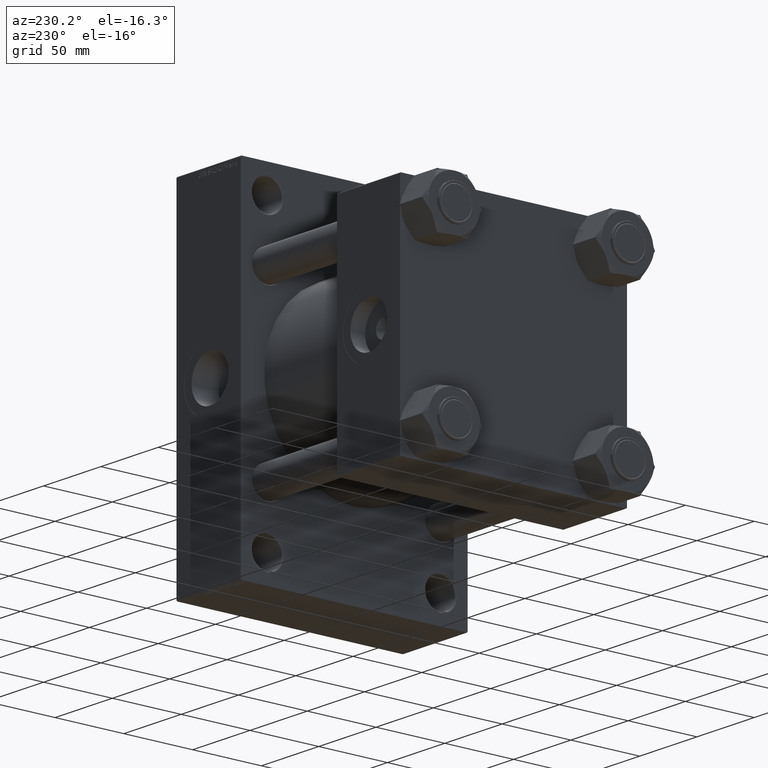
[diagram: clean part render]
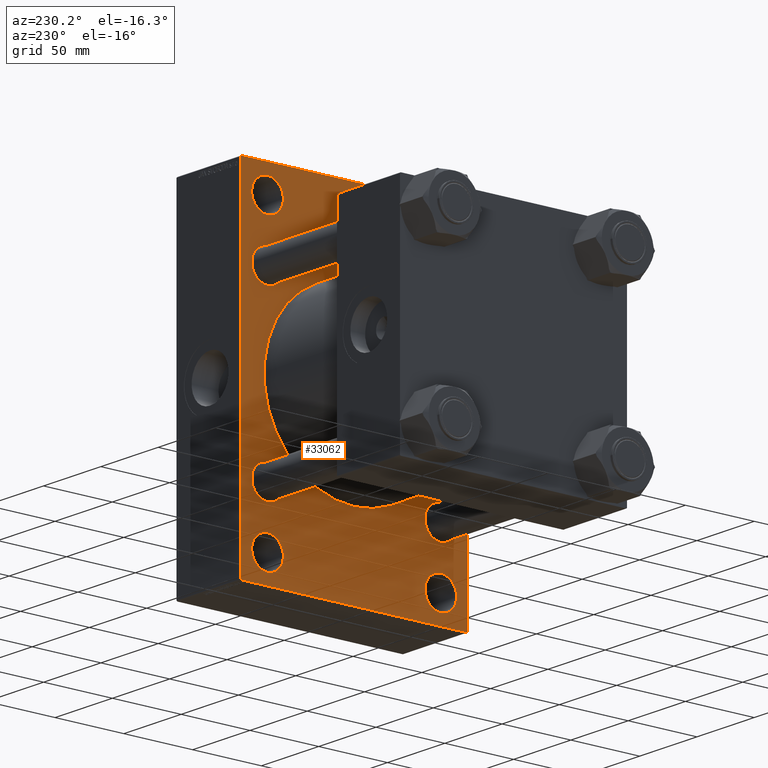
[diagram: same view with one face highlighted and labeled with its STEP entity id]
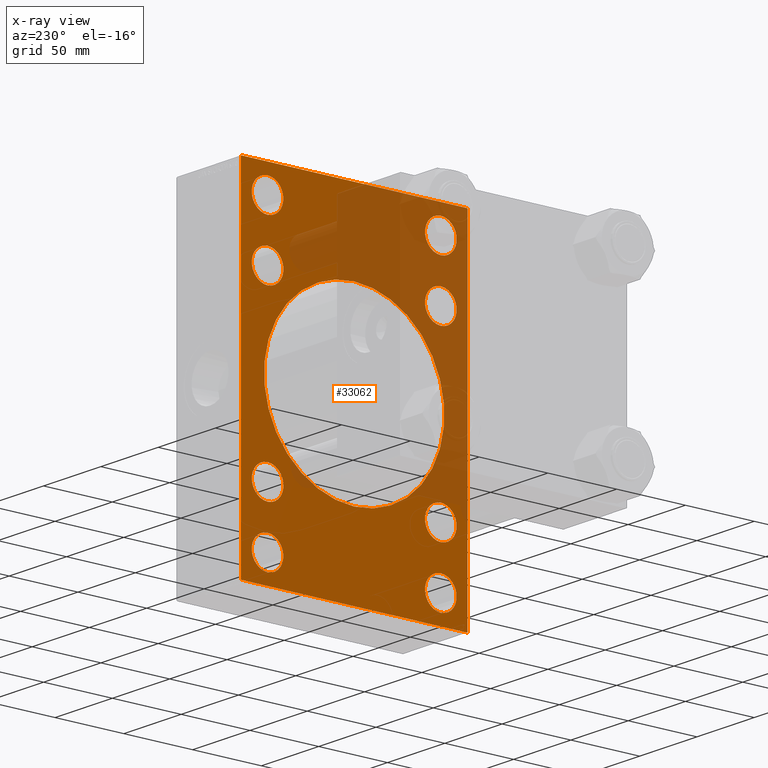
[diagram: x-ray of the same camera — body ghosted, the highlighted face saturated]
A machine part, auxiliary view. The second image highlights one B-rep face of the part: STEP entity #33062.
The next image is the same camera in x-ray: the body ghosted, the highlighted face saturated — about 37% of this face is hidden behind the body in this view.
In plain terms, the highlighted planar face has unit normal (-1, 0, 0).
Its self-contained STEP definition (entity closure, byte-faithful):
#585 = ORIENTED_EDGE ( 'NONE', *, *, #13997, .T. ) ;
#625 = CARTESIAN_POINT ( 'NONE',  ( 139.0000000000000000, -62.94999999999998153, 62.95000000000001705 ) ) ;
#730 = ORIENTED_EDGE ( 'NONE', *, *, #24531, .T. ) ;
#773 = VECTOR ( 'NONE', #12327, 1000.000000000000000 ) ;
#813 = CARTESIAN_POINT ( 'NONE',  ( 139.0000000000000000, 62.95000000000000284, 51.45000000000000995 ) ) ;
#835 = EDGE_CURVE ( 'NONE', #13593, #44879, #25471, .T. ) ;
#1060 = CIRCLE ( 'NONE', #28741, 11.50000000000001066 ) ;
#1460 = CARTESIAN_POINT ( 'NONE',  ( 139.0000000000000000, 62.95000000000000284, 62.95000000000000284 ) ) ;
#1718 = FACE_BOUND ( 'NONE', #44923, .T. ) ;
#1728 = ORIENTED_EDGE ( 'NONE', *, *, #33346, .T. ) ;
#2389 = EDGE_CURVE ( 'NONE', #39641, #11834, #14016, .T. ) ;
#2421 = FACE_OUTER_BOUND ( 'NONE', #25835, .T. ) ;
#2529 = DIRECTION ( 'NONE',  ( 0.000000000000000000, 0.7071067811865081598, -0.7071067811865868746 ) ) ;
#2557 = DIRECTION ( 'NONE',  ( 0.000000000000000000, 0.000000000000000000, -1.000000000000000000 ) ) ;
#2613 = DIRECTION ( 'NONE',  ( 0.000000000000000000, 0.000000000000000000, 1.000000000000000000 ) ) ;
#2649 = ORIENTED_EDGE ( 'NONE', *, *, #835, .T. ) ;
#2821 = ORIENTED_EDGE ( 'NONE', *, *, #35153, .T. ) ;
#3031 = CARTESIAN_POINT ( 'NONE',  ( 139.0000000000000000, -82.50000000000002842, 123.4999999999999716 ) ) ;
#3664 = CARTESIAN_POINT ( 'NONE',  ( 139.0000000000000000, -62.94999999999998153, 51.45000000000000995 ) ) ;
#3982 = EDGE_CURVE ( 'NONE', #11834, #20596, #9010, .T. ) ;
#4159 = VERTEX_POINT ( 'NONE', #6046 ) ;
#4747 = DIRECTION ( 'NONE',  ( 1.000000000000000000, -0.000000000000000000, 0.000000000000000000 ) ) ;
#4917 = VERTEX_POINT ( 'NONE', #17213 ) ;
#5249 = CARTESIAN_POINT ( 'NONE',  ( 139.0000000000000000, -62.94999999999998153, -62.95000000000001705 ) ) ;
#5338 = FACE_BOUND ( 'NONE', #38099, .T. ) ;
#5525 = CARTESIAN_POINT ( 'NONE',  ( 139.0000000000000000, -63.00000000000000000, -115.5000000000000142 ) ) ;
#5755 = CARTESIAN_POINT ( 'NONE',  ( 139.0000000000000000, 82.00000000000005684, -123.5000000000000000 ) ) ;
#5843 = CARTESIAN_POINT ( 'NONE',  ( 139.0000000000000000, 82.50000000000000000, -123.5000000000000000 ) ) ;
#6046 = CARTESIAN_POINT ( 'NONE',  ( 139.0000000000000000, -82.50000000000002842, 123.0000000000000853 ) ) ;
#6147 = LINE ( 'NONE', #43281, #31009 ) ;
#6317 = VECTOR ( 'NONE', #31193, 1000.000000000000000 ) ;
#6438 = AXIS2_PLACEMENT_3D ( 'NONE', #22966, #30207, #10911 ) ;
#6456 = EDGE_CURVE ( 'NONE', #4159, #20596, #43552, .T. ) ;
#6574 = LINE ( 'NONE', #7535, #46720 ) ;
#6849 = AXIS2_PLACEMENT_3D ( 'NONE', #28235, #17138, #17382 ) ;
#6867 = EDGE_CURVE ( 'NONE', #36889, #4917, #28010, .T. ) ;
#7535 = CARTESIAN_POINT ( 'NONE',  ( 139.0000000000000000, 82.49999999999998579, 123.5000000000000142 ) ) ;
#7725 = VERTEX_POINT ( 'NONE', #813 ) ;
#8532 = DIRECTION ( 'NONE',  ( 1.000000000000000000, -0.000000000000000000, 0.000000000000000000 ) ) ;
#8747 = DIRECTION ( 'NONE',  ( 1.000000000000000000, -0.000000000000000000, 0.000000000000000000 ) ) ;
#8793 = EDGE_CURVE ( 'NONE', #28554, #16255, #38837, .T. ) ;
#8940 = AXIS2_PLACEMENT_3D ( 'NONE', #19229, #4747, #19455 ) ;
#9010 = LINE ( 'NONE', #23714, #6317 ) ;
#9240 = VERTEX_POINT ( 'NONE', #29589 ) ;
#9280 = CARTESIAN_POINT ( 'NONE',  ( 139.0000000000000000, -102.7499999999966036, 102.7500000000051728 ) ) ;
#9345 = EDGE_LOOP ( 'NONE', ( #38924, #585 ) ) ;
#9530 = EDGE_CURVE ( 'NONE', #4917, #36889, #31035, .T. ) ;
#9629 = DIRECTION ( 'NONE',  ( 1.000000000000000000, -0.000000000000000000, 0.000000000000000000 ) ) ;
#10097 = VECTOR ( 'NONE', #20543, 1000.000000000000000 ) ;
#10408 = CARTESIAN_POINT ( 'NONE',  ( 139.0000000000000000, -63.00000000000000000, 103.9999999999999858 ) ) ;
#10440 = ORIENTED_EDGE ( 'NONE', *, *, #43180, .T. ) ;
#10648 = CIRCLE ( 'NONE', #33789, 11.49999999999999645 ) ;
#10911 = DIRECTION ( 'NONE',  ( 0.000000000000000000, 0.000000000000000000, -1.000000000000000000 ) ) ;
#11159 = CIRCLE ( 'NONE', #47344, 11.50000000000001066 ) ;
#11224 = DIRECTION ( 'NONE',  ( 1.000000000000000000, -0.000000000000000000, 0.000000000000000000 ) ) ;
#11748 = DIRECTION ( 'NONE',  ( 1.000000000000000000, -0.000000000000000000, 0.000000000000000000 ) ) ;
#11834 = VERTEX_POINT ( 'NONE', #33292 ) ;
#12003 = CIRCLE ( 'NONE', #34347, 11.50000000000001066 ) ;
#12245 = DIRECTION ( 'NONE',  ( 0.000000000000000000, 0.000000000000000000, 1.000000000000000000 ) ) ;
#12327 = DIRECTION ( 'NONE',  ( -0.000000000000000000, -0.7071067811865769936, -0.7071067811865181518 ) ) ;
#12814 = PLANE ( 'NONE',  #6849 ) ;
#12857 = CARTESIAN_POINT ( 'NONE',  ( 139.0000000000000000, 63.00000000000000000, 104.0000000000000000 ) ) ;
#12938 = VERTEX_POINT ( 'NONE', #30911 ) ;
#12992 = CARTESIAN_POINT ( 'NONE',  ( 139.0000000000000000, 82.49999999999998579, 123.0000000000000142 ) ) ;
#13407 = EDGE_CURVE ( 'NONE', #22131, #16515, #19048, .T. ) ;
#13593 = VERTEX_POINT ( 'NONE', #25650 ) ;
#13750 = CARTESIAN_POINT ( 'NONE',  ( 139.0000000000000000, 63.00000000000000000, 92.49999999999998579 ) ) ;
#13934 = VERTEX_POINT ( 'NONE', #30167 ) ;
#13997 = EDGE_CURVE ( 'NONE', #7725, #12938, #37924, .T. ) ;
#14016 = LINE ( 'NONE', #5843, #10097 ) ;
#14128 = DIRECTION ( 'NONE',  ( 1.000000000000000000, -0.000000000000000000, 0.000000000000000000 ) ) ;
#14250 = ORIENTED_EDGE ( 'NONE', *, *, #43757, .T. ) ;
#14295 = EDGE_LOOP ( 'NONE', ( #43415, #28791 ) ) ;
#14404 = CARTESIAN_POINT ( 'NONE',  ( 139.0000000000000000, 62.95000000000000284, -62.95000000000000284 ) ) ;
#15164 = AXIS2_PLACEMENT_3D ( 'NONE', #14404, #30076, #40703 ) ;
#15216 = AXIS2_PLACEMENT_3D ( 'NONE', #23040, #37780, #34849 ) ;
#15853 = AXIS2_PLACEMENT_3D ( 'NONE', #625, #11224, #2613 ) ;
#16255 = VERTEX_POINT ( 'NONE', #19392 ) ;
#16459 = DIRECTION ( 'NONE',  ( 1.000000000000000000, -0.000000000000000000, 0.000000000000000000 ) ) ;
#16505 = EDGE_CURVE ( 'NONE', #16255, #28554, #34885, .T. ) ;
#16515 = VERTEX_POINT ( 'NONE', #3664 ) ;
#16691 = CARTESIAN_POINT ( 'NONE',  ( 139.0000000000000000, 62.95000000000000284, 62.95000000000000284 ) ) ;
#16867 = DIRECTION ( 'NONE',  ( 0.000000000000000000, 0.000000000000000000, 1.000000000000000000 ) ) ;
#17009 = DIRECTION ( 'NONE',  ( 1.000000000000000000, -0.000000000000000000, 0.000000000000000000 ) ) ;
#17041 = EDGE_CURVE ( 'NONE', #32215, #13934, #1060, .T. ) ;
#17138 = DIRECTION ( 'NONE',  ( -1.000000000000000000, 0.000000000000000000, -0.000000000000000000 ) ) ;
#17213 = CARTESIAN_POINT ( 'NONE',  ( 139.0000000000000000, 5.419351320449953395E-15, -65.50000000000001421 ) ) ;
#17279 = AXIS2_PLACEMENT_3D ( 'NONE', #38643, #16459, #35034 ) ;
#17382 = DIRECTION ( 'NONE',  ( -0.000000000000000000, 0.000000000000000000, 1.000000000000000000 ) ) ;
#17579 = CARTESIAN_POINT ( 'NONE',  ( 139.0000000000000000, -63.00000000000000000, 92.49999999999997158 ) ) ;
#17744 = CARTESIAN_POINT ( 'NONE',  ( 139.0000000000000000, -63.00000000000000000, -104.0000000000000142 ) ) ;
#17982 = VERTEX_POINT ( 'NONE', #42914 ) ;
#18146 = DIRECTION ( 'NONE',  ( 0.000000000000000000, -1.000000000000000000, -2.523234146875355505E-16 ) ) ;
#18614 = DIRECTION ( 'NONE',  ( 0.000000000000000000, 0.000000000000000000, 1.000000000000000000 ) ) ;
#18703 = DIRECTION ( 'NONE',  ( 1.000000000000000000, -0.000000000000000000, 0.000000000000000000 ) ) ;
#19048 = CIRCLE ( 'NONE', #15216, 11.50000000000001066 ) ;
#19229 = CARTESIAN_POINT ( 'NONE',  ( 139.0000000000000000, 63.00000000000000000, -104.0000000000000142 ) ) ;
#19355 = ORIENTED_EDGE ( 'NONE', *, *, #20146, .T. ) ;
#19392 = CARTESIAN_POINT ( 'NONE',  ( 139.0000000000000000, -63.00000000000000000, 115.4999999999999858 ) ) ;
#19455 = DIRECTION ( 'NONE',  ( 0.000000000000000000, 0.000000000000000000, 1.000000000000000000 ) ) ;
#19639 = CIRCLE ( 'NONE', #26570, 11.49999999999999645 ) ;
#20146 = EDGE_CURVE ( 'NONE', #36085, #44525, #11159, .T. ) ;
#20208 = EDGE_CURVE ( 'NONE', #29466, #46783, #19639, .T. ) ;
#20543 = DIRECTION ( 'NONE',  ( 0.000000000000000000, -1.000000000000000000, -8.410780489584517938E-17 ) ) ;
#20596 = VERTEX_POINT ( 'NONE', #27569 ) ;
#20747 = FACE_BOUND ( 'NONE', #41221, .T. ) ;
#20984 = AXIS2_PLACEMENT_3D ( 'NONE', #10408, #33093, #18614 ) ;
#22131 = VERTEX_POINT ( 'NONE', #36187 ) ;
#22159 = ORIENTED_EDGE ( 'NONE', *, *, #3982, .T. ) ;
#22435 = EDGE_CURVE ( 'NONE', #16515, #22131, #45120, .T. ) ;
#22451 = EDGE_CURVE ( 'NONE', #13934, #32215, #12003, .T. ) ;
#22482 = ORIENTED_EDGE ( 'NONE', *, *, #9530, .T. ) ;
#22703 = DIRECTION ( 'NONE',  ( 0.000000000000000000, 0.000000000000000000, 1.000000000000000000 ) ) ;
#22966 = CARTESIAN_POINT ( 'NONE',  ( 139.0000000000000000, -2.602085213965210642E-15, 0.000000000000000000 ) ) ;
#23040 = CARTESIAN_POINT ( 'NONE',  ( 139.0000000000000000, -62.94999999999998153, 62.95000000000001705 ) ) ;
#23197 = VERTEX_POINT ( 'NONE', #37652 ) ;
#23232 = DIRECTION ( 'NONE',  ( 0.000000000000000000, 0.000000000000000000, 1.000000000000000000 ) ) ;
#23312 = CARTESIAN_POINT ( 'NONE',  ( 139.0000000000000000, 62.95000000000000284, -51.45000000000000995 ) ) ;
#23313 = VERTEX_POINT ( 'NONE', #5525 ) ;
#23714 = CARTESIAN_POINT ( 'NONE',  ( 139.0000000000000000, -102.7499999999988916, -102.7500000000017479 ) ) ;
#23780 = EDGE_CURVE ( 'NONE', #44525, #36085, #42084, .T. ) ;
#24193 = EDGE_CURVE ( 'NONE', #36354, #17982, #6574, .T. ) ;
#24531 = EDGE_CURVE ( 'NONE', #46783, #29466, #32079, .T. ) ;
#24709 = DIRECTION ( 'NONE',  ( 0.000000000000000000, 0.000000000000000000, -1.000000000000000000 ) ) ;
#24876 = VECTOR ( 'NONE', #2557, 1000.000000000000000 ) ;
#24960 = CARTESIAN_POINT ( 'NONE',  ( 139.0000000000000000, -2.602085213965210642E-15, 0.000000000000000000 ) ) ;
#25471 = CIRCLE ( 'NONE', #33202, 11.49999999999999645 ) ;
#25650 = CARTESIAN_POINT ( 'NONE',  ( 139.0000000000000000, -62.94999999999998153, -51.45000000000002416 ) ) ;
#25835 = EDGE_LOOP ( 'NONE', ( #33501, #22159, #30124, #39049, #32076, #14250, #1728, #2821 ) ) ;
#25850 = DIRECTION ( 'NONE',  ( 1.000000000000000000, -0.000000000000000000, 0.000000000000000000 ) ) ;
#25942 = CARTESIAN_POINT ( 'NONE',  ( 139.0000000000000000, 63.00000000000000000, 104.0000000000000000 ) ) ;
#26420 = CIRCLE ( 'NONE', #44869, 11.50000000000001066 ) ;
#26570 = AXIS2_PLACEMENT_3D ( 'NONE', #39432, #17009, #31713 ) ;
#26601 = EDGE_LOOP ( 'NONE', ( #47099, #41491 ) ) ;
#26927 = CARTESIAN_POINT ( 'NONE',  ( 139.0000000000000000, 63.00000000000000000, -104.0000000000000142 ) ) ;
#27220 = EDGE_LOOP ( 'NONE', ( #2649, #28024 ) ) ;
#27516 = FACE_BOUND ( 'NONE', #14295, .T. ) ;
#27569 = CARTESIAN_POINT ( 'NONE',  ( 139.0000000000000000, -82.50000000000002842, -123.0000000000000284 ) ) ;
#27702 = LINE ( 'NONE', #42667, #42268 ) ;
#27874 = AXIS2_PLACEMENT_3D ( 'NONE', #16691, #8747, #46111 ) ;
#28010 = CIRCLE ( 'NONE', #6438, 65.50000000000001421 ) ;
#28024 = ORIENTED_EDGE ( 'NONE', *, *, #33532, .T. ) ;
#28235 = CARTESIAN_POINT ( 'NONE',  ( 139.0000000000000000, 0.000000000000000000, 0.000000000000000000 ) ) ;
#28267 = CARTESIAN_POINT ( 'NONE',  ( 139.0000000000000000, 62.95000000000000284, -74.45000000000000284 ) ) ;
#28554 = VERTEX_POINT ( 'NONE', #17579 ) ;
#28741 = AXIS2_PLACEMENT_3D ( 'NONE', #12857, #8532, #23232 ) ;
#28791 = ORIENTED_EDGE ( 'NONE', *, *, #8793, .T. ) ;
#29259 = ORIENTED_EDGE ( 'NONE', *, *, #6867, .T. ) ;
#29466 = VERTEX_POINT ( 'NONE', #23312 ) ;
#29589 = CARTESIAN_POINT ( 'NONE',  ( 139.0000000000000000, 82.50000000000000000, -123.0000000000000995 ) ) ;
#30076 = DIRECTION ( 'NONE',  ( 1.000000000000000000, -0.000000000000000000, 0.000000000000000000 ) ) ;
#30124 = ORIENTED_EDGE ( 'NONE', *, *, #6456, .F. ) ;
#30167 = CARTESIAN_POINT ( 'NONE',  ( 139.0000000000000000, 63.00000000000000000, 115.5000000000000000 ) ) ;
#30207 = DIRECTION ( 'NONE',  ( 1.000000000000000000, 0.000000000000000000, 0.000000000000000000 ) ) ;
#30911 = CARTESIAN_POINT ( 'NONE',  ( 139.0000000000000000, 62.95000000000000284, 74.45000000000000284 ) ) ;
#31009 = VECTOR ( 'NONE', #2529, 1000.000000000000000 ) ;
#31035 = CIRCLE ( 'NONE', #31136, 65.50000000000001421 ) ;
#31136 = AXIS2_PLACEMENT_3D ( 'NONE', #24960, #32189, #24709 ) ;
#31193 = DIRECTION ( 'NONE',  ( 0.000000000000000000, -0.7071067811865573427, 0.7071067811865378028 ) ) ;
#31713 = DIRECTION ( 'NONE',  ( 0.000000000000000000, 0.000000000000000000, 1.000000000000000000 ) ) ;
#32076 = ORIENTED_EDGE ( 'NONE', *, *, #24193, .F. ) ;
#32079 = CIRCLE ( 'NONE', #15164, 11.49999999999999645 ) ;
#32090 = FACE_BOUND ( 'NONE', #26601, .T. ) ;
#32189 = DIRECTION ( 'NONE',  ( 1.000000000000000000, 0.000000000000000000, 0.000000000000000000 ) ) ;
#32215 = VERTEX_POINT ( 'NONE', #13750 ) ;
#32313 = ORIENTED_EDGE ( 'NONE', *, *, #17041, .T. ) ;
#32511 = EDGE_LOOP ( 'NONE', ( #29259, #22482 ) ) ;
#33062 = ADVANCED_FACE ( 'NONE', ( #27516, #1718, #5338, #35007, #32090, #46803, #20747, #38618, #35470, #2421 ), #12814, .T. ) ;
#33093 = DIRECTION ( 'NONE',  ( 1.000000000000000000, -0.000000000000000000, 0.000000000000000000 ) ) ;
#33202 = AXIS2_PLACEMENT_3D ( 'NONE', #5249, #34218, #38528 ) ;
#33292 = CARTESIAN_POINT ( 'NONE',  ( 139.0000000000000000, -82.00000000000002842, -123.5000000000000142 ) ) ;
#33346 = EDGE_CURVE ( 'NONE', #33354, #9240, #27702, .T. ) ;
#33354 = VERTEX_POINT ( 'NONE', #12992 ) ;
#33501 = ORIENTED_EDGE ( 'NONE', *, *, #2389, .T. ) ;
#33532 = EDGE_CURVE ( 'NONE', #44879, #13593, #10648, .T. ) ;
#33732 = DIRECTION ( 'NONE',  ( 1.000000000000000000, -0.000000000000000000, 0.000000000000000000 ) ) ;
#33789 = AXIS2_PLACEMENT_3D ( 'NONE', #44334, #33732, #12245 ) ;
#34178 = CIRCLE ( 'NONE', #27874, 11.49999999999999645 ) ;
#34218 = DIRECTION ( 'NONE',  ( 1.000000000000000000, -0.000000000000000000, 0.000000000000000000 ) ) ;
#34347 = AXIS2_PLACEMENT_3D ( 'NONE', #25942, #18703, #44014 ) ;
#34753 = LINE ( 'NONE', #45841, #773 ) ;
#34849 = DIRECTION ( 'NONE',  ( 0.000000000000000000, 0.000000000000000000, 1.000000000000000000 ) ) ;
#34885 = CIRCLE ( 'NONE', #20984, 11.50000000000001066 ) ;
#34950 = EDGE_CURVE ( 'NONE', #4159, #17982, #47075, .T. ) ;
#35007 = FACE_BOUND ( 'NONE', #44579, .T. ) ;
#35034 = DIRECTION ( 'NONE',  ( 0.000000000000000000, 0.000000000000000000, 1.000000000000000000 ) ) ;
#35153 = EDGE_CURVE ( 'NONE', #9240, #39641, #34753, .T. ) ;
#35470 = FACE_BOUND ( 'NONE', #32511, .T. ) ;
#35657 = ORIENTED_EDGE ( 'NONE', *, *, #41083, .T. ) ;
#35738 = ORIENTED_EDGE ( 'NONE', *, *, #20208, .T. ) ;
#35771 = CARTESIAN_POINT ( 'NONE',  ( 139.0000000000000000, 63.00000000000000000, -92.50000000000000000 ) ) ;
#35896 = CARTESIAN_POINT ( 'NONE',  ( 139.0000000000000000, 82.00000000000004263, 123.5000000000000142 ) ) ;
#36085 = VERTEX_POINT ( 'NONE', #35771 ) ;
#36187 = CARTESIAN_POINT ( 'NONE',  ( 139.0000000000000000, -62.94999999999998153, 74.45000000000003126 ) ) ;
#36354 = VERTEX_POINT ( 'NONE', #35896 ) ;
#36433 = AXIS2_PLACEMENT_3D ( 'NONE', #17744, #14128, #43556 ) ;
#36844 = CARTESIAN_POINT ( 'NONE',  ( 139.0000000000000000, -62.94999999999998153, -74.45000000000001705 ) ) ;
#36889 = VERTEX_POINT ( 'NONE', #36975 ) ;
#36975 = CARTESIAN_POINT ( 'NONE',  ( 139.0000000000000000, -2.602085213965210642E-15, 65.50000000000001421 ) ) ;
#37652 = CARTESIAN_POINT ( 'NONE',  ( 139.0000000000000000, -63.00000000000000000, -92.50000000000000000 ) ) ;
#37780 = DIRECTION ( 'NONE',  ( 1.000000000000000000, -0.000000000000000000, 0.000000000000000000 ) ) ;
#37924 = CIRCLE ( 'NONE', #44071, 11.49999999999999645 ) ;
#38099 = EDGE_LOOP ( 'NONE', ( #19355, #44209 ) ) ;
#38528 = DIRECTION ( 'NONE',  ( 0.000000000000000000, 0.000000000000000000, 1.000000000000000000 ) ) ;
#38618 = FACE_BOUND ( 'NONE', #27220, .T. ) ;
#38643 = CARTESIAN_POINT ( 'NONE',  ( 139.0000000000000000, -63.00000000000000000, 103.9999999999999858 ) ) ;
#38837 = CIRCLE ( 'NONE', #17279, 11.50000000000001066 ) ;
#38924 = ORIENTED_EDGE ( 'NONE', *, *, #45386, .T. ) ;
#39049 = ORIENTED_EDGE ( 'NONE', *, *, #34950, .T. ) ;
#39432 = CARTESIAN_POINT ( 'NONE',  ( 139.0000000000000000, 62.95000000000000284, -62.95000000000000284 ) ) ;
#39641 = VERTEX_POINT ( 'NONE', #5755 ) ;
#40703 = DIRECTION ( 'NONE',  ( 0.000000000000000000, 0.000000000000000000, 1.000000000000000000 ) ) ;
#40925 = ORIENTED_EDGE ( 'NONE', *, *, #22451, .T. ) ;
#41083 = EDGE_CURVE ( 'NONE', #23313, #23197, #42594, .T. ) ;
#41190 = DIRECTION ( 'NONE',  ( 0.000000000000000000, 0.000000000000000000, 1.000000000000000000 ) ) ;
#41221 = EDGE_LOOP ( 'NONE', ( #35738, #730 ) ) ;
#41491 = ORIENTED_EDGE ( 'NONE', *, *, #22435, .T. ) ;
#42084 = CIRCLE ( 'NONE', #8940, 11.50000000000001066 ) ;
#42268 = VECTOR ( 'NONE', #46041, 1000.000000000000000 ) ;
#42594 = CIRCLE ( 'NONE', #36433, 11.50000000000001066 ) ;
#42667 = CARTESIAN_POINT ( 'NONE',  ( 139.0000000000000000, 82.49999999999998579, 123.5000000000000142 ) ) ;
#42914 = CARTESIAN_POINT ( 'NONE',  ( 139.0000000000000000, -82.00000000000009948, 123.4999999999999716 ) ) ;
#43180 = EDGE_CURVE ( 'NONE', #23197, #23313, #26420, .T. ) ;
#43281 = CARTESIAN_POINT ( 'NONE',  ( 139.0000000000000000, 102.7500000000046043, 102.7499999999931788 ) ) ;
#43415 = ORIENTED_EDGE ( 'NONE', *, *, #16505, .T. ) ;
#43552 = LINE ( 'NONE', #3031, #24876 ) ;
#43556 = DIRECTION ( 'NONE',  ( 0.000000000000000000, 0.000000000000000000, 1.000000000000000000 ) ) ;
#43757 = EDGE_CURVE ( 'NONE', #36354, #33354, #6147, .T. ) ;
#43818 = VECTOR ( 'NONE', #43931, 1000.000000000000000 ) ;
#43925 = CARTESIAN_POINT ( 'NONE',  ( 139.0000000000000000, -63.00000000000000000, -104.0000000000000142 ) ) ;
#43931 = DIRECTION ( 'NONE',  ( -0.000000000000000000, 0.7071067811865769936, 0.7071067811865181518 ) ) ;
#44014 = DIRECTION ( 'NONE',  ( 0.000000000000000000, 0.000000000000000000, 1.000000000000000000 ) ) ;
#44071 = AXIS2_PLACEMENT_3D ( 'NONE', #1460, #9629, #16867 ) ;
#44209 = ORIENTED_EDGE ( 'NONE', *, *, #23780, .T. ) ;
#44334 = CARTESIAN_POINT ( 'NONE',  ( 139.0000000000000000, -62.94999999999998153, -62.95000000000001705 ) ) ;
#44525 = VERTEX_POINT ( 'NONE', #46787 ) ;
#44579 = EDGE_LOOP ( 'NONE', ( #40925, #32313 ) ) ;
#44869 = AXIS2_PLACEMENT_3D ( 'NONE', #43925, #25850, #22703 ) ;
#44879 = VERTEX_POINT ( 'NONE', #36844 ) ;
#44923 = EDGE_LOOP ( 'NONE', ( #10440, #35657 ) ) ;
#45120 = CIRCLE ( 'NONE', #15853, 11.50000000000001066 ) ;
#45386 = EDGE_CURVE ( 'NONE', #12938, #7725, #34178, .T. ) ;
#45841 = CARTESIAN_POINT ( 'NONE',  ( 139.0000000000000000, 102.7499999999966320, -102.7500000000051870 ) ) ;
#46041 = DIRECTION ( 'NONE',  ( 0.000000000000000000, 5.618537574013950123E-17, -1.000000000000000000 ) ) ;
#46111 = DIRECTION ( 'NONE',  ( 0.000000000000000000, 0.000000000000000000, 1.000000000000000000 ) ) ;
#46720 = VECTOR ( 'NONE', #18146, 1000.000000000000000 ) ;
#46783 = VERTEX_POINT ( 'NONE', #28267 ) ;
#46787 = CARTESIAN_POINT ( 'NONE',  ( 139.0000000000000000, 63.00000000000000000, -115.5000000000000142 ) ) ;
#46803 = FACE_BOUND ( 'NONE', #9345, .T. ) ;
#47075 = LINE ( 'NONE', #9280, #43818 ) ;
#47099 = ORIENTED_EDGE ( 'NONE', *, *, #13407, .T. ) ;
#47344 = AXIS2_PLACEMENT_3D ( 'NONE', #26927, #11748, #41190 ) ;